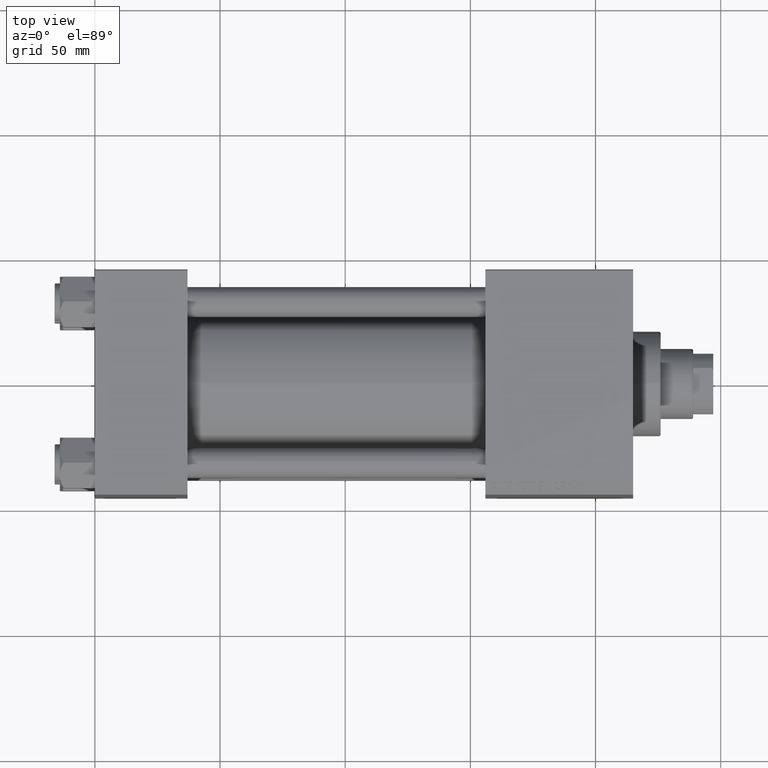
[diagram: clean part render]
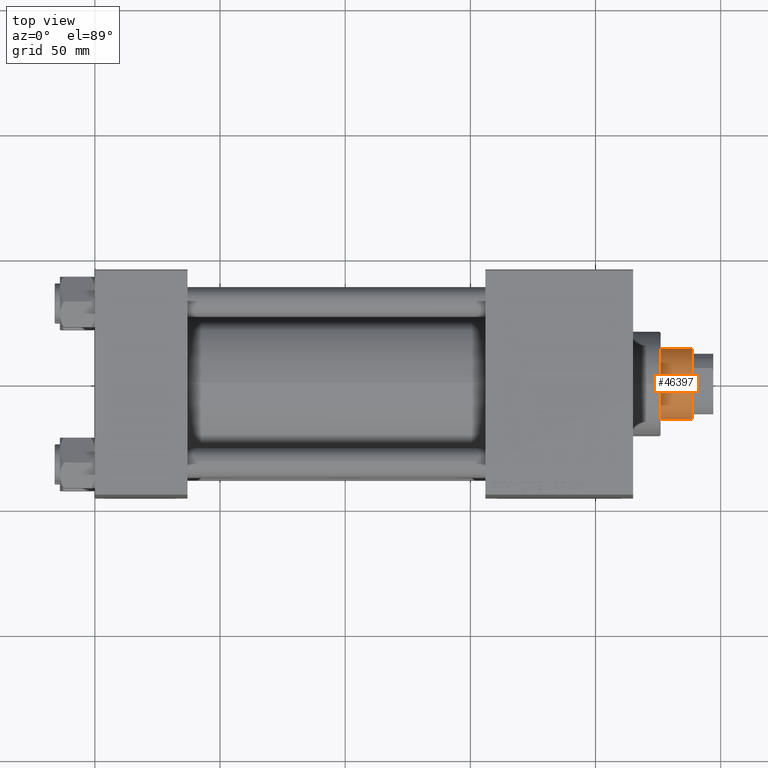
[diagram: same view with one face highlighted and labeled with its STEP entity id]
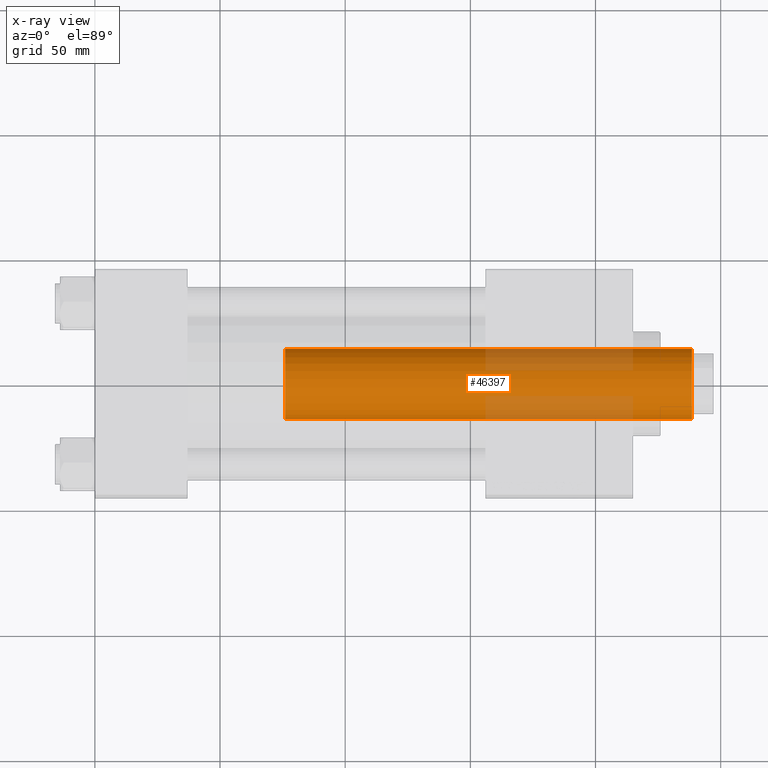
[diagram: x-ray of the same camera — body ghosted, the highlighted face saturated]
A machine part, top view. The second image highlights one B-rep face of the part: STEP entity #46397.
The next image is the same camera in x-ray: the body ghosted, the highlighted face saturated — about 23% of this face is hidden behind the body in this view.
In plain terms, the highlighted cylindrical surface (edge-blend (fillet) strip) has radius 14 mm, axis along (-1, 0, 0).
Its self-contained STEP definition (entity closure, byte-faithful):
#314 = AXIS2_PLACEMENT_3D ( 'NONE', #30840, #34144, #3162 ) ;
#1629 = CARTESIAN_POINT ( 'NONE',  ( 14.00000000000000178, 1.714505518806294835E-15, 201.5000000000000284 ) ) ;
#2992 = EDGE_CURVE ( 'NONE', #40933, #49805, #44356, .T. ) ;
#3010 = CARTESIAN_POINT ( 'NONE',  ( -14.00000000000000178, 0.000000000000000000, 201.5000000000000284 ) ) ;
#3162 = DIRECTION ( 'NONE',  ( -1.000000000000000000, 0.000000000000000000, 0.000000000000000000 ) ) ;
#6979 = CYLINDRICAL_SURFACE ( 'NONE', #314, 14.00000000000000178 ) ;
#7189 = VECTOR ( 'NONE', #28809, 1000.000000000000000 ) ;
#7563 = CARTESIAN_POINT ( 'NONE',  ( -14.00000000000000178, 0.000000000000000000, 39.00000000000000000 ) ) ;
#10058 = DIRECTION ( 'NONE',  ( 0.000000000000000000, 0.000000000000000000, -1.000000000000000000 ) ) ;
#10320 = EDGE_CURVE ( 'NONE', #14707, #40933, #13311, .T. ) ;
#10459 = VERTEX_POINT ( 'NONE', #1629 ) ;
#10779 = LINE ( 'NONE', #14593, #43681 ) ;
#13311 = LINE ( 'NONE', #13562, #7189 ) ;
#13562 = CARTESIAN_POINT ( 'NONE',  ( -14.00000000000000178, 0.000000000000000000, 202.0000000000000000 ) ) ;
#14593 = CARTESIAN_POINT ( 'NONE',  ( 14.00000000000000178, 1.714505518806294835E-15, 202.0000000000000000 ) ) ;
#14707 = VERTEX_POINT ( 'NONE', #3010 ) ;
#17679 = EDGE_LOOP ( 'NONE', ( #33332, #33695, #35946, #26751 ) ) ;
#18578 = CARTESIAN_POINT ( 'NONE',  ( 0.000000000000000000, 0.000000000000000000, 39.00000000000000000 ) ) ;
#18881 = DIRECTION ( 'NONE',  ( -0.000000000000000000, -0.000000000000000000, -1.000000000000000000 ) ) ;
#21726 = CARTESIAN_POINT ( 'NONE',  ( 0.000000000000000000, 0.000000000000000000, 201.5000000000000284 ) ) ;
#22395 = DIRECTION ( 'NONE',  ( 1.000000000000000000, 0.000000000000000000, 0.000000000000000000 ) ) ;
#22447 = AXIS2_PLACEMENT_3D ( 'NONE', #18578, #45268, #22395 ) ;
#26703 = CIRCLE ( 'NONE', #32391, 14.00000000000000178 ) ;
#26751 = ORIENTED_EDGE ( 'NONE', *, *, #2992, .T. ) ;
#28809 = DIRECTION ( 'NONE',  ( -0.000000000000000000, -0.000000000000000000, -1.000000000000000000 ) ) ;
#28813 = EDGE_CURVE ( 'NONE', #10459, #49805, #10779, .T. ) ;
#30295 = EDGE_CURVE ( 'NONE', #10459, #14707, #26703, .T. ) ;
#30790 = CARTESIAN_POINT ( 'NONE',  ( 14.00000000000000178, 1.714505518806294835E-15, 39.00000000000000000 ) ) ;
#30840 = CARTESIAN_POINT ( 'NONE',  ( 0.000000000000000000, 0.000000000000000000, 202.0000000000000000 ) ) ;
#32391 = AXIS2_PLACEMENT_3D ( 'NONE', #21726, #10058, #41032 ) ;
#33332 = ORIENTED_EDGE ( 'NONE', *, *, #28813, .F. ) ;
#33695 = ORIENTED_EDGE ( 'NONE', *, *, #30295, .T. ) ;
#34144 = DIRECTION ( 'NONE',  ( -0.000000000000000000, -0.000000000000000000, -1.000000000000000000 ) ) ;
#35946 = ORIENTED_EDGE ( 'NONE', *, *, #10320, .T. ) ;
#37701 = FACE_OUTER_BOUND ( 'NONE', #17679, .T. ) ;
#40933 = VERTEX_POINT ( 'NONE', #7563 ) ;
#41032 = DIRECTION ( 'NONE',  ( 1.000000000000000000, 0.000000000000000000, 0.000000000000000000 ) ) ;
#43681 = VECTOR ( 'NONE', #18881, 1000.000000000000000 ) ;
#44356 = CIRCLE ( 'NONE', #22447, 14.00000000000000178 ) ;
#45268 = DIRECTION ( 'NONE',  ( 0.000000000000000000, 0.000000000000000000, 1.000000000000000000 ) ) ;
#46397 = ADVANCED_FACE ( 'NONE', ( #37701 ), #6979, .T. ) ;
#49805 = VERTEX_POINT ( 'NONE', #30790 ) ;